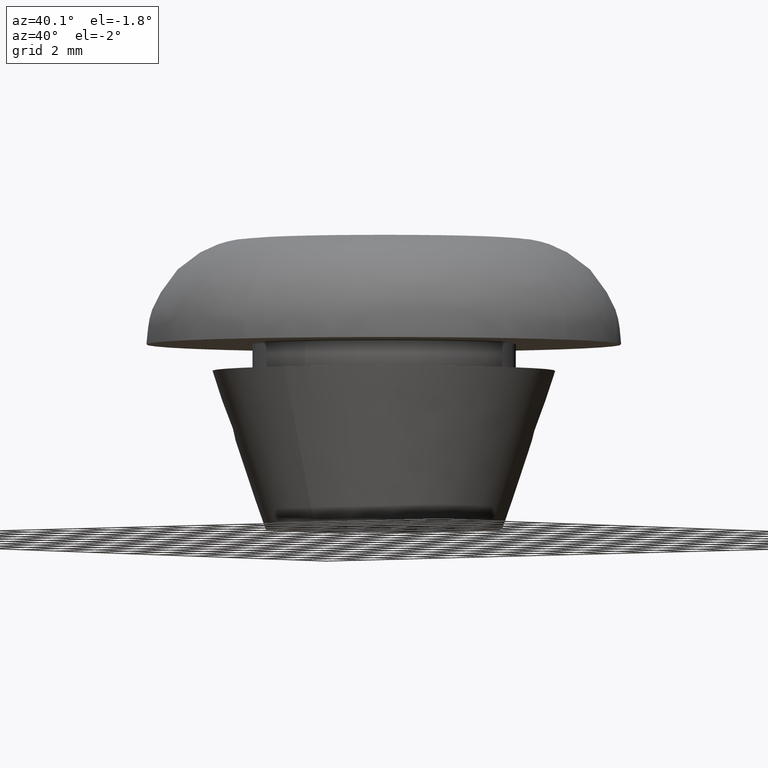
[diagram: clean part render]
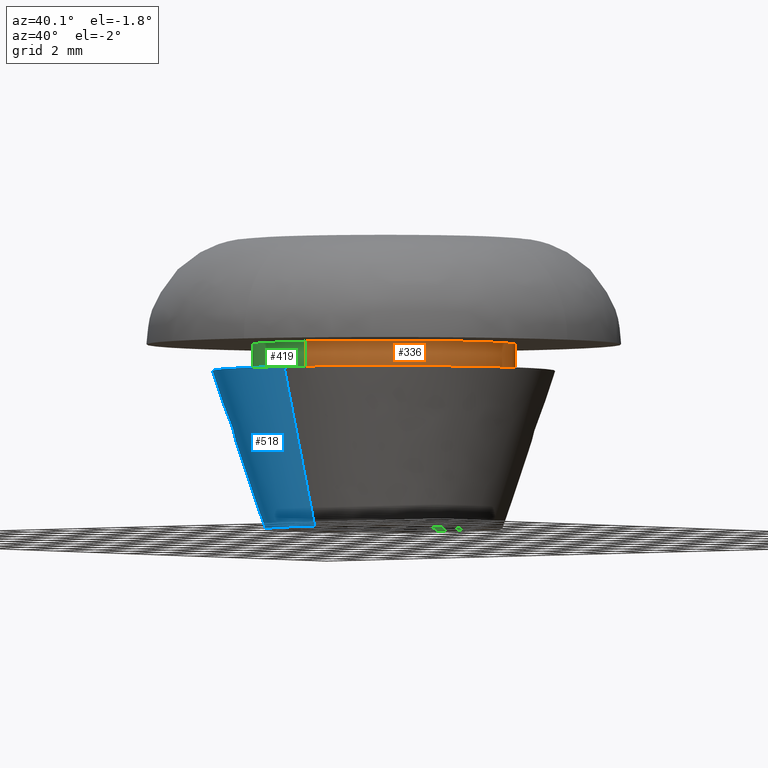
[diagram: same view with three faces highlighted in distinct colors, each labeled with its STEP entity id]
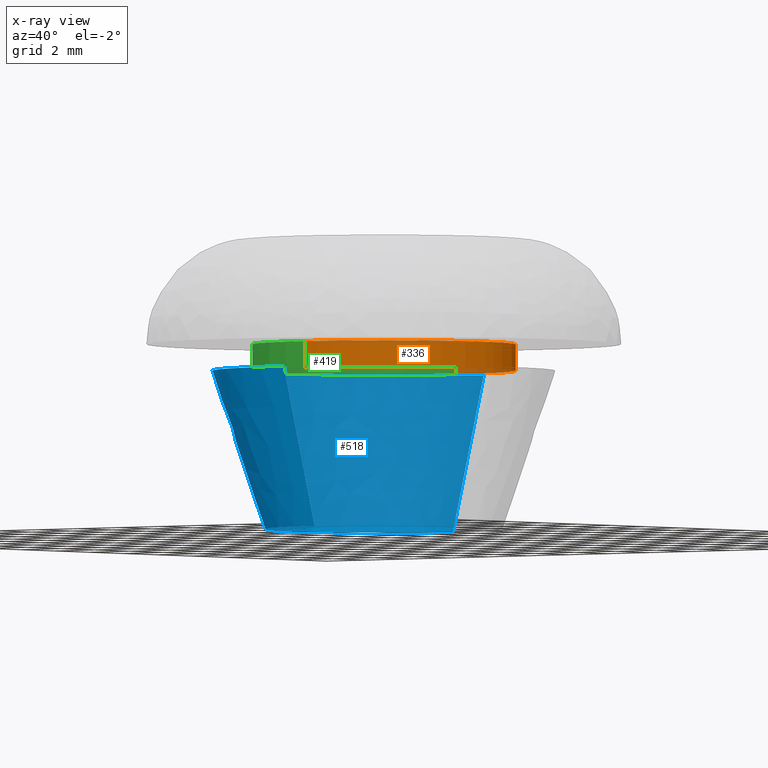
[diagram: x-ray of the same camera — body ghosted, the three highlighted faces saturated]
A machine part, auxiliary view with three faces highlighted in distinct colors.
The next image is the same camera in x-ray (body ghosted, the three faces saturated) — at least one of them is partly hidden behind the body in this view.
Their STEP definitions:

[orange] entity #336 — the highlighted face is a freeform B-spline surface patch.
#234=CARTESIAN_POINT('',(-0.590171173283792,4.965047631818332,7.025000000000001));
#235=CARTESIAN_POINT('',(-0.448073643189888,4.981938077243028,7.025000000000001));
#236=CARTESIAN_POINT('',(-0.305242697674285,4.990673992109334,7.025000000000001));
#237=CARTESIAN_POINT('',(4.685431294435048,5.295916689783620,7.025000000000000));
#238=CARTESIAN_POINT('',(4.990673992109334,0.305242697674285,7.025000000000001));
#239=CARTESIAN_POINT('',(5.295916689783620,-4.685431294435048,7.025000000000000));
#240=CARTESIAN_POINT('',(0.305242697674285,-4.990673992109334,7.025000000000001));
#241=CARTESIAN_POINT('',(-0.590171173283792,4.965047631818332,5.974375000000000));
#242=CARTESIAN_POINT('',(-0.448073643189888,4.981938077243028,5.974374999999999));
#243=CARTESIAN_POINT('',(-0.305242697674285,4.990673992109334,5.974374999999999));
#244=CARTESIAN_POINT('',(4.685431294435048,5.295916689783620,5.974374999999999));
#245=CARTESIAN_POINT('',(4.990673992109334,0.305242697674285,5.974374999999999));
#246=CARTESIAN_POINT('',(5.295916689783620,-4.685431294435048,5.974374999999999));
#247=CARTESIAN_POINT('',(0.305242697674285,-4.990673992109334,5.974374999999999));
#255=(BOUNDED_SURFACE()B_SPLINE_SURFACE(2,1,((#234,#241),(#235,#242),(#236,#243),(#237,#244),(#238,#245),(#239,#246),(#240,#247)),.UNSPECIFIED.,.F.,.F.,.U.)B_SPLINE_SURFACE_WITH_KNOTS((3,2,2,3),(2,2),(0.0,0.331370849898476,8.615642097360375,16.899913344822270),(0.0,1.0),.UNSPECIFIED.)GEOMETRIC_REPRESENTATION_ITEM()RATIONAL_B_SPLINE_SURFACE(((0.977505800795127,0.977505800795127),(0.988284271247462,0.988284271247462),(1.0,1.0),(0.707106781186548,0.707106781186548),(1.0,1.0),(0.707106781186548,0.707106781186548),(1.0,1.0)))REPRESENTATION_ITEM('')SURFACE());
#256=CARTESIAN_POINT('',(-0.590169455614432,4.965047835988770,7.000000000000027));
#257=VERTEX_POINT('',#256);
#258=CARTESIAN_POINT('',(5.0,0.0,7.0));
#259=VERTEX_POINT('',#258);
#260=CARTESIAN_POINT('',(-0.590169455614432,4.965047835988770,7.000000000000027));
#261=CARTESIAN_POINT('',(-0.296119730345424,4.999999999999999,7.0));
#262=CARTESIAN_POINT('',(0.0,5.0,7.0));
#263=CARTESIAN_POINT('',(5.000000000000001,5.000000000000001,6.999999999999999));
#264=CARTESIAN_POINT('',(5.0,0.0,7.0));
#272=(BOUNDED_CURVE()B_SPLINE_CURVE(2,(#260,#261,#262,#263,#264),.UNSPECIFIED.,.F.,.U.)B_SPLINE_CURVE_WITH_KNOTS((3,2,3),(0.229562531982699,0.250000000000000,0.500000000000000),.UNSPECIFIED.)CURVE()GEOMETRIC_REPRESENTATION_ITEM()RATIONAL_B_SPLINE_CURVE((0.956026868785737,0.976056016832063,1.0,0.707106781186548,1.0))REPRESENTATION_ITEM(''));
#273=EDGE_CURVE('',#257,#259,#272,.T.);
#274=ORIENTED_EDGE('',*,*,#273,.T.);
#275=CARTESIAN_POINT('',(0.305237013104272,-4.990674339786032,6.999999999999885));
#276=VERTEX_POINT('',#275);
#277=CARTESIAN_POINT('',(5.0,0.0,7.0));
#278=CARTESIAN_POINT('',(4.999999999999999,-4.703535702044791,6.999999999999999));
#279=CARTESIAN_POINT('',(0.305237013104272,-4.990674339786032,6.999999999999885));
#287=(BOUNDED_CURVE()B_SPLINE_CURVE(2,(#277,#278,#279),.UNSPECIFIED.,.F.,.U.)B_SPLINE_CURVE_WITH_KNOTS((3,3),(0.500000000000000,0.739333158779441),.UNSPECIFIED.)CURVE()GEOMETRIC_REPRESENTATION_ITEM()RATIONAL_B_SPLINE_CURVE((1.0,0.719603763025194,0.976072462890779))REPRESENTATION_ITEM(''));
#288=EDGE_CURVE('',#259,#276,#287,.T.);
#289=ORIENTED_EDGE('',*,*,#288,.T.);
#290=CARTESIAN_POINT('',(0.305237081557413,-4.990674335599413,6.0));
#291=VERTEX_POINT('',#290);
#292=CARTESIAN_POINT('',(0.305237013104272,-4.990674339786032,6.999999999999885));
#293=CARTESIAN_POINT('',(0.305237081557413,-4.990674335599413,6.0));
#294=QUASI_UNIFORM_CURVE('',1,(#292,#293),.UNSPECIFIED.,.F.,.U.);
#295=EDGE_CURVE('',#276,#291,#294,.T.);
#296=ORIENTED_EDGE('',*,*,#295,.T.);
#297=CARTESIAN_POINT('',(5.0,0.0,6.0));
#298=VERTEX_POINT('',#297);
#299=CARTESIAN_POINT('',(5.0,0.0,6.0));
#300=CARTESIAN_POINT('',(4.999999999999999,-4.703535637409559,6.0));
#301=CARTESIAN_POINT('',(0.305237081557413,-4.990674335599414,6.000000000000001));
#309=(BOUNDED_CURVE()B_SPLINE_CURVE(2,(#299,#300,#301),.UNSPECIFIED.,.F.,.U.)B_SPLINE_CURVE_WITH_KNOTS((3,3),(0.500000000000000,0.739333156412752),.UNSPECIFIED.)CURVE()GEOMETRIC_REPRESENTATION_ITEM()RATIONAL_B_SPLINE_CURVE((1.0,0.719603765797943,0.976072457818505))REPRESENTATION_ITEM(''));
#310=EDGE_CURVE('',#298,#291,#309,.T.);
#311=ORIENTED_EDGE('',*,*,#310,.F.);
#312=CARTESIAN_POINT('',(-0.590169476332178,4.965047833526166,6.0));
#313=VERTEX_POINT('',#312);
#314=CARTESIAN_POINT('',(-0.590169476332178,4.965047833526166,6.000000000000001));
#315=CARTESIAN_POINT('',(-0.296119740813809,5.0,6.0));
#316=CARTESIAN_POINT('',(0.0,5.0,6.0));
#317=CARTESIAN_POINT('',(5.000000000000001,5.000000000000001,6.0));
#318=CARTESIAN_POINT('',(5.0,0.0,6.0));
#326=(BOUNDED_CURVE()B_SPLINE_CURVE(2,(#314,#315,#316,#317,#318),.UNSPECIFIED.,.F.,.U.)B_SPLINE_CURVE_WITH_KNOTS((3,2,3),(0.229562531277496,0.250000000000000,0.500000000000000),.UNSPECIFIED.)CURVE()GEOMETRIC_REPRESENTATION_ITEM()RATIONAL_B_SPLINE_CURVE((0.956026867403510,0.976056016005866,1.0,0.707106781186548,1.0))REPRESENTATION_ITEM(''));
#327=EDGE_CURVE('',#313,#298,#326,.T.);
#328=ORIENTED_EDGE('',*,*,#327,.F.);
#329=CARTESIAN_POINT('',(-0.590169455614432,4.965047835988770,7.000000000000027));
#330=CARTESIAN_POINT('',(-0.590169476332178,4.965047833526166,6.0));
#331=QUASI_UNIFORM_CURVE('',1,(#329,#330),.UNSPECIFIED.,.F.,.U.);
#332=EDGE_CURVE('',#257,#313,#331,.T.);
#333=ORIENTED_EDGE('',*,*,#332,.F.);
#334=EDGE_LOOP('',(#274,#289,#296,#311,#328,#333));
#335=FACE_OUTER_BOUND('',#334,.T.);
#336=ADVANCED_FACE('',(#335),#255,.T.);

[blue] entity #518 — the highlighted face is a freeform B-spline surface patch.
#420=CARTESIAN_POINT('',(-0.349142975988913,4.436282135112418,-0.150000000000000));
#421=CARTESIAN_POINT('',(-4.785425111101330,4.087139159123505,-0.150000000000000));
#422=CARTESIAN_POINT('',(-4.436282135112418,-0.349142975988913,-0.150000000000000));
#423=CARTESIAN_POINT('',(-4.087139159123505,-4.785425111101330,-0.150000000000000));
#424=CARTESIAN_POINT('',(0.349142975988913,-4.436282135112418,-0.150000000000000));
#425=CARTESIAN_POINT('',(-0.514005150887048,6.531054682619153,6.153750000000001));
#426=CARTESIAN_POINT('',(-7.045059833506200,6.017049531732106,6.153750000000003));
#427=CARTESIAN_POINT('',(-6.531054682619153,-0.514005150887048,6.153750000000001));
#428=CARTESIAN_POINT('',(-6.017049531732106,-7.045059833506200,6.153750000000003));
#429=CARTESIAN_POINT('',(0.514005150887048,-6.531054682619153,6.153750000000001));
#437=(BOUNDED_SURFACE()B_SPLINE_SURFACE(2,1,((#420,#425),(#421,#426),(#422,#427),(#423,#428),(#424,#429)),.UNSPECIFIED.,.F.,.F.,.U.)B_SPLINE_SURFACE_WITH_KNOTS((3,2,3),(2,2),(0.0,10.854466401986951,21.708932803973909),(0.0,6.644735933428809),.UNSPECIFIED.)GEOMETRIC_REPRESENTATION_ITEM()RATIONAL_B_SPLINE_SURFACE(((1.0,1.0),(0.707106781186548,0.707106781186548),(1.0,1.0),(0.707106781186548,0.707106781186548),(1.0,1.0)))REPRESENTATION_ITEM('')SURFACE());
#438=CARTESIAN_POINT('',(-4.500000000000000,0.0,0.0));
#439=VERTEX_POINT('',#438);
#440=CARTESIAN_POINT('',(-0.353063810381927,4.486127613227898,-0.000001661209573));
#441=VERTEX_POINT('',#440);
#442=CARTESIAN_POINT('',(-4.500000000000000,0.0,0.0));
#443=CARTESIAN_POINT('',(-4.499999978277276,4.159758868250052,-0.000000830604787));
#444=CARTESIAN_POINT('',(-0.353063810381927,4.486127613227898,-0.000001661209573));
#452=(BOUNDED_CURVE()B_SPLINE_CURVE(2,(#442,#443,#444),.UNSPECIFIED.,.F.,.U.)B_SPLINE_CURVE_WITH_KNOTS((3,3),(0.0,0.236331379997369),.UNSPECIFIED.)CURVE()GEOMETRIC_REPRESENTATION_ITEM()RATIONAL_B_SPLINE_CURVE((1.0,0.723120565623782,0.969723521799744))REPRESENTATION_ITEM(''));
#453=EDGE_CURVE('',#439,#441,#452,.T.);
#454=ORIENTED_EDGE('',*,*,#453,.F.);
#455=CARTESIAN_POINT('',(0.353063810381927,-4.486127613227898,-0.000001661209573));
#456=VERTEX_POINT('',#455);
#457=CARTESIAN_POINT('',(0.353063810381927,-4.486127613227898,-0.000001661209573));
#458=CARTESIAN_POINT('',(0.176804395584852,-4.499999457994606,-0.000001631042669));
#459=CARTESIAN_POINT('',(-0.000000041803015,-4.499999468839201,-0.000001598408310));
#460=CARTESIAN_POINT('',(-4.500000020080290,-4.499999744854223,-0.000000767803524));
#461=CARTESIAN_POINT('',(-4.500000000000000,0.0,0.0));
#469=(BOUNDED_CURVE()B_SPLINE_CURVE(2,(#457,#458,#459,#460,#461),.UNSPECIFIED.,.F.,.U.)B_SPLINE_CURVE_WITH_KNOTS((3,2,3),(0.736331379997369,0.750000000000000,1.0),.UNSPECIFIED.)CURVE()GEOMETRIC_REPRESENTATION_ITEM()RATIONAL_B_SPLINE_CURVE((0.969723521799744,0.983986215562766,1.0,0.707106781186547,1.0))REPRESENTATION_ITEM(''));
#470=EDGE_CURVE('',#456,#439,#469,.T.);
#471=ORIENTED_EDGE('',*,*,#470,.F.);
#472=CARTESIAN_POINT('',(0.509980382880330,-6.479961963647005,5.999997009518591));
#473=VERTEX_POINT('',#472);
#474=CARTESIAN_POINT('',(0.353063810381927,-4.486127613227898,-0.000001661209573));
#475=CARTESIAN_POINT('',(0.509980382880330,-6.479961963647005,5.999997009518591));
#476=QUASI_UNIFORM_CURVE('',1,(#474,#475),.UNSPECIFIED.,.F.,.U.);
#477=EDGE_CURVE('',#456,#473,#476,.T.);
#478=ORIENTED_EDGE('',*,*,#477,.T.);
#479=CARTESIAN_POINT('',(-6.500000000000000,0.0,6.0));
#480=VERTEX_POINT('',#479);
#481=CARTESIAN_POINT('',(0.509980382880330,-6.479961963647005,5.999997009518592));
#482=CARTESIAN_POINT('',(0.255383779694899,-6.499999024290850,5.999997063824478));
#483=CARTESIAN_POINT('',(-0.000000075253000,-6.499999043813085,5.999997122572222));
#484=CARTESIAN_POINT('',(-6.500000036148163,-6.499999540690751,5.999998617812927));
#485=CARTESIAN_POINT('',(-6.500000000000000,0.0,6.0));
#493=(BOUNDED_CURVE()B_SPLINE_CURVE(2,(#481,#482,#483,#484,#485),.UNSPECIFIED.,.F.,.U.)B_SPLINE_CURVE_WITH_KNOTS((3,2,3),(0.736331397486609,0.750000000000000,1.0),.UNSPECIFIED.)CURVE()GEOMETRIC_REPRESENTATION_ITEM()RATIONAL_B_SPLINE_CURVE((0.969723558298482,0.983986236052685,1.0,0.707106781186547,1.0))REPRESENTATION_ITEM(''));
#494=EDGE_CURVE('',#473,#480,#493,.T.);
#495=ORIENTED_EDGE('',*,*,#494,.T.);
#496=CARTESIAN_POINT('',(-0.509980382880330,6.479961963647005,5.999997009518590));
#497=VERTEX_POINT('',#496);
#498=CARTESIAN_POINT('',(-6.500000000000000,0.0,6.0));
#499=CARTESIAN_POINT('',(-6.499999960895162,6.008541104187772,5.999998504759296));
#500=CARTESIAN_POINT('',(-0.509980382880331,6.479961963647006,5.999997009518590));
#508=(BOUNDED_CURVE()B_SPLINE_CURVE(2,(#498,#499,#500),.UNSPECIFIED.,.F.,.U.)B_SPLINE_CURVE_WITH_KNOTS((3,3),(0.0,0.236331397486609),.UNSPECIFIED.)CURVE()GEOMETRIC_REPRESENTATION_ITEM()RATIONAL_B_SPLINE_CURVE((1.0,0.723120545133863,0.969723558298482))REPRESENTATION_ITEM(''));
#509=EDGE_CURVE('',#480,#497,#508,.T.);
#510=ORIENTED_EDGE('',*,*,#509,.T.);
#511=CARTESIAN_POINT('',(-0.353063810381927,4.486127613227898,-0.000001661209573));
#512=CARTESIAN_POINT('',(-0.509980382880330,6.479961963647005,5.999997009518590));
#513=QUASI_UNIFORM_CURVE('',1,(#511,#512),.UNSPECIFIED.,.F.,.U.);
#514=EDGE_CURVE('',#441,#497,#513,.T.);
#515=ORIENTED_EDGE('',*,*,#514,.F.);
#516=EDGE_LOOP('',(#454,#471,#478,#495,#510,#515));
#517=FACE_OUTER_BOUND('',#516,.T.);
#518=ADVANCED_FACE('',(#517),#437,.T.);

[green] entity #419 — the highlighted face is a freeform B-spline surface patch.
#256=CARTESIAN_POINT('',(-0.590169455614432,4.965047835988770,7.000000000000027));
#257=VERTEX_POINT('',#256);
#275=CARTESIAN_POINT('',(0.305237013104272,-4.990674339786032,6.999999999999885));
#276=VERTEX_POINT('',#275);
#290=CARTESIAN_POINT('',(0.305237081557413,-4.990674335599413,6.0));
#291=VERTEX_POINT('',#290);
#292=CARTESIAN_POINT('',(0.305237013104272,-4.990674339786032,6.999999999999885));
#293=CARTESIAN_POINT('',(0.305237081557413,-4.990674335599413,6.0));
#294=QUASI_UNIFORM_CURVE('',1,(#292,#293),.UNSPECIFIED.,.F.,.U.);
#295=EDGE_CURVE('',#276,#291,#294,.T.);
#312=CARTESIAN_POINT('',(-0.590169476332178,4.965047833526166,6.0));
#313=VERTEX_POINT('',#312);
#329=CARTESIAN_POINT('',(-0.590169455614432,4.965047835988770,7.000000000000027));
#330=CARTESIAN_POINT('',(-0.590169476332178,4.965047833526166,6.0));
#331=QUASI_UNIFORM_CURVE('',1,(#329,#330),.UNSPECIFIED.,.F.,.U.);
#332=EDGE_CURVE('',#257,#313,#331,.T.);
#337=CARTESIAN_POINT('',(0.305242697674285,-4.990673992109334,7.025000000000001));
#338=CARTESIAN_POINT('',(-4.685431294435048,-5.295916689783620,7.025000000000000));
#339=CARTESIAN_POINT('',(-4.990673992109334,-0.305242697674285,7.025000000000001));
#340=CARTESIAN_POINT('',(-5.278930983662638,4.407717454197504,7.025000000000001));
#341=CARTESIAN_POINT('',(-0.590171173283792,4.965047631818332,7.025000000000001));
#342=CARTESIAN_POINT('',(0.305242697674285,-4.990673992109334,5.974374999999999));
#343=CARTESIAN_POINT('',(-4.685431294435048,-5.295916689783620,5.974374999999999));
#344=CARTESIAN_POINT('',(-4.990673992109334,-0.305242697674285,5.974374999999999));
#345=CARTESIAN_POINT('',(-5.278930983662638,4.407717454197504,5.974374999999998));
#346=CARTESIAN_POINT('',(-0.590171173283792,4.965047631818332,5.974375000000000));
#354=(BOUNDED_SURFACE()B_SPLINE_SURFACE(2,1,((#337,#342),(#338,#343),(#339,#344),(#340,#345),(#341,#346)),.UNSPECIFIED.,.F.,.F.,.U.)B_SPLINE_SURFACE_WITH_KNOTS((3,2,3),(2,2),(0.0,8.284271247461899,16.237171645025320),(0.0,1.0),.UNSPECIFIED.)GEOMETRIC_REPRESENTATION_ITEM()RATIONAL_B_SPLINE_SURFACE(((1.0,1.0),(0.707106781186548,0.707106781186548),(1.0,1.0),(0.718822509939086,0.718822509939086),(0.977505800795127,0.977505800795127)))REPRESENTATION_ITEM('')SURFACE());
#355=CARTESIAN_POINT('',(-5.0,0.0,7.0));
#356=VERTEX_POINT('',#355);
#357=CARTESIAN_POINT('',(-5.0,0.0,7.0));
#358=CARTESIAN_POINT('',(-5.0,4.440874176902134,7.0));
#359=CARTESIAN_POINT('',(-0.590169455614432,4.965047835988770,7.000000000000027));
#367=(BOUNDED_CURVE()B_SPLINE_CURVE(2,(#357,#358,#359),.UNSPECIFIED.,.F.,.U.)B_SPLINE_CURVE_WITH_KNOTS((3,3),(0.0,0.229562531982699),.UNSPECIFIED.)CURVE()GEOMETRIC_REPRESENTATION_ITEM()RATIONAL_B_SPLINE_CURVE((1.0,0.731050764354485,0.956026868785737))REPRESENTATION_ITEM(''));
#368=EDGE_CURVE('',#356,#257,#367,.T.);
#369=ORIENTED_EDGE('',*,*,#368,.T.);
#370=ORIENTED_EDGE('',*,*,#332,.T.);
#371=CARTESIAN_POINT('',(-5.0,0.0,6.0));
#372=VERTEX_POINT('',#371);
#373=CARTESIAN_POINT('',(-5.0,0.0,6.0));
#374=CARTESIAN_POINT('',(-5.0,4.440874158241168,6.0));
#375=CARTESIAN_POINT('',(-0.590169476332178,4.965047833526166,6.000000000000001));
#383=(BOUNDED_CURVE()B_SPLINE_CURVE(2,(#373,#374,#375),.UNSPECIFIED.,.F.,.U.)B_SPLINE_CURVE_WITH_KNOTS((3,3),(0.0,0.229562531277496),.UNSPECIFIED.)CURVE()GEOMETRIC_REPRESENTATION_ITEM()RATIONAL_B_SPLINE_CURVE((1.0,0.731050765180682,0.956026867403510))REPRESENTATION_ITEM(''));
#384=EDGE_CURVE('',#372,#313,#383,.T.);
#385=ORIENTED_EDGE('',*,*,#384,.F.);
#386=CARTESIAN_POINT('',(0.305237081557413,-4.990674335599414,6.000000000000001));
#387=CARTESIAN_POINT('',(0.152761000561227,-5.0,6.000000000000001));
#388=CARTESIAN_POINT('',(0.0,-5.0,6.0));
#389=CARTESIAN_POINT('',(-5.000000000000001,-5.000000000000001,6.0));
#390=CARTESIAN_POINT('',(-5.0,0.0,6.0));
#398=(BOUNDED_CURVE()B_SPLINE_CURVE(2,(#386,#387,#388,#389,#390),.UNSPECIFIED.,.F.,.U.)B_SPLINE_CURVE_WITH_KNOTS((3,2,3),(0.739333156412752,0.750000000000000,1.0),.UNSPECIFIED.)CURVE()GEOMETRIC_REPRESENTATION_ITEM()RATIONAL_B_SPLINE_CURVE((0.976072457818505,0.987503015388605,1.0,0.707106781186548,1.0))REPRESENTATION_ITEM(''));
#399=EDGE_CURVE('',#291,#372,#398,.T.);
#400=ORIENTED_EDGE('',*,*,#399,.F.);
#401=ORIENTED_EDGE('',*,*,#295,.F.);
#402=CARTESIAN_POINT('',(0.305237013104272,-4.990674339786032,6.999999999999885));
#403=CARTESIAN_POINT('',(0.152760966238695,-5.0,7.000000000000001));
#404=CARTESIAN_POINT('',(0.0,-5.0,7.0));
#405=CARTESIAN_POINT('',(-5.000000000000001,-5.000000000000001,6.999999999999999));
#406=CARTESIAN_POINT('',(-5.0,0.0,7.0));
#414=(BOUNDED_CURVE()B_SPLINE_CURVE(2,(#402,#403,#404,#405,#406),.UNSPECIFIED.,.F.,.U.)B_SPLINE_CURVE_WITH_KNOTS((3,2,3),(0.739333158779441,0.750000000000000,1.0),.UNSPECIFIED.)CURVE()GEOMETRIC_REPRESENTATION_ITEM()RATIONAL_B_SPLINE_CURVE((0.976072462890779,0.987503018161353,1.0,0.707106781186548,1.0))REPRESENTATION_ITEM(''));
#415=EDGE_CURVE('',#276,#356,#414,.T.);
#416=ORIENTED_EDGE('',*,*,#415,.T.);
#417=EDGE_LOOP('',(#369,#370,#385,#400,#401,#416));
#418=FACE_OUTER_BOUND('',#417,.T.);
#419=ADVANCED_FACE('',(#418),#354,.T.);